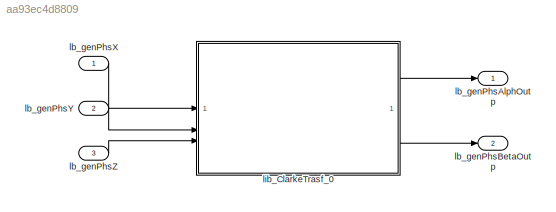
MODEL slx_aa93ec4d8809
KIND library
CONFIG AbsTol = auto
CONFIG EnableMultiTasking = off
CONFIG FixedStep = auto
CONFIG MaxStep = auto
CONFIG MinStep = auto
CONFIG RelTol = 1e-3
CONFIG SampleTimeConstraint = Unconstrained
CONFIG SolverName = VariableStepAuto
CONFIG StartTime = 0.0
CONFIG StopTime = 10.0
BLOCK [Outport] lb_genPhsAlphOutp
BLOCK [Outport] lb_genPhsBetaOutp
  Port = 2
BLOCK [Inport] lb_genPhsX
BLOCK [Inport] lb_genPhsY
  Port = 2
BLOCK [Inport] lb_genPhsZ
  Port = 3
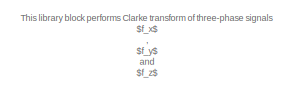
[diagram: lib_ClarkeTrasf_0 - part 1/4, top center region]
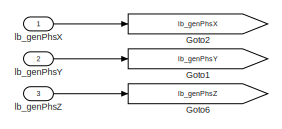
[diagram: lib_ClarkeTrasf_0 - part 2/4, middle left region]
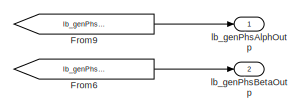
[diagram: lib_ClarkeTrasf_0 - part 3/4, middle right region]
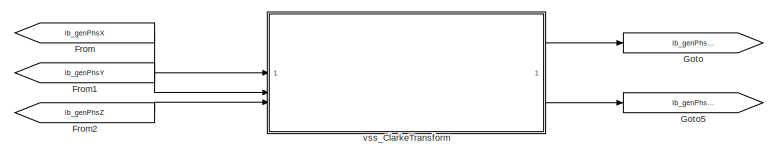
[diagram: lib_ClarkeTrasf_0 - part 4/4, bottom center region]
BLOCK [SubSystem] lib_ClarkeTrasf_0
  VariantControl = ClarkTransf_MIL_flo
BLOCK [From] lib_ClarkeTrasf_0/From
  GotoTag = lb_genPhsX
BLOCK [From] lib_ClarkeTrasf_0/From1
  GotoTag = lb_genPhsY
BLOCK [From] lib_ClarkeTrasf_0/From2
  GotoTag = lb_genPhsZ
BLOCK [From] lib_ClarkeTrasf_0/From6
  GotoTag = lb_genPhsBetaOutp
BLOCK [From] lib_ClarkeTrasf_0/From9
  GotoTag = lb_genPhsAlphOutp
BLOCK [Goto] lib_ClarkeTrasf_0/Goto
  GotoTag = lb_genPhsAlphOutp
BLOCK [Goto] lib_ClarkeTrasf_0/Goto1
  GotoTag = lb_genPhsY
BLOCK [Goto] lib_ClarkeTrasf_0/Goto2
  GotoTag = lb_genPhsX
BLOCK [Goto] lib_ClarkeTrasf_0/Goto5
  GotoTag = lb_genPhsBetaOutp
BLOCK [Goto] lib_ClarkeTrasf_0/Goto6
  GotoTag = lb_genPhsZ
BLOCK [Outport] lib_ClarkeTrasf_0/lb_genPhsAlphOutp
  VectorParamsAs1DForOutWhenUnconnected = off
BLOCK [Outport] lib_ClarkeTrasf_0/lb_genPhsBetaOutp
  Port = 2
  VectorParamsAs1DForOutWhenUnconnected = off
BLOCK [Inport] lib_ClarkeTrasf_0/lb_genPhsX
BLOCK [Inport] lib_ClarkeTrasf_0/lb_genPhsY
  Port = 2
BLOCK [Inport] lib_ClarkeTrasf_0/lb_genPhsZ
  Port = 3
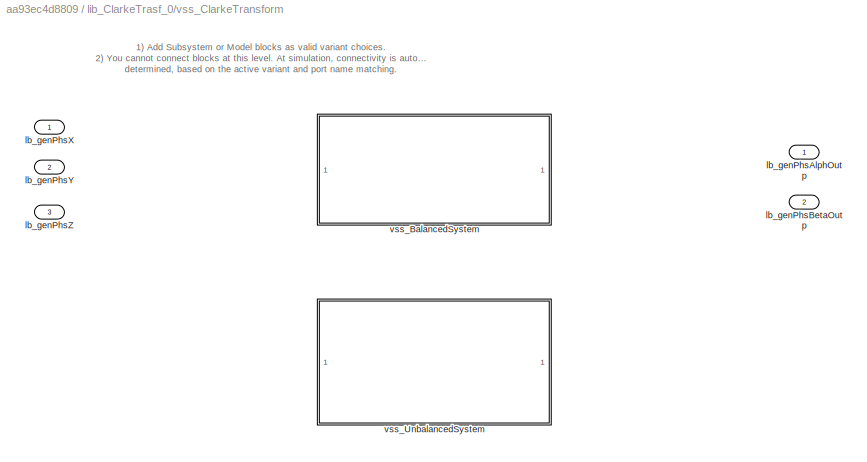
BLOCK [SubSystem] lib_ClarkeTrasf_0/vss_ClarkeTransform
  LabelModeActiveChoice = lb_parBalcSysModeLbl
  Variant = on
  VariantControlMode = label
BLOCK [Outport] lib_ClarkeTrasf_0/vss_ClarkeTransform/lb_genPhsAlphOutp
BLOCK [Outport] lib_ClarkeTrasf_0/vss_ClarkeTransform/lb_genPhsBetaOutp
  Port = 2
BLOCK [Inport] lib_ClarkeTrasf_0/vss_ClarkeTransform/lb_genPhsX
BLOCK [Inport] lib_ClarkeTrasf_0/vss_ClarkeTransform/lb_genPhsY
  Port = 2
BLOCK [Inport] lib_ClarkeTrasf_0/vss_ClarkeTransform/lb_genPhsZ
  Port = 3
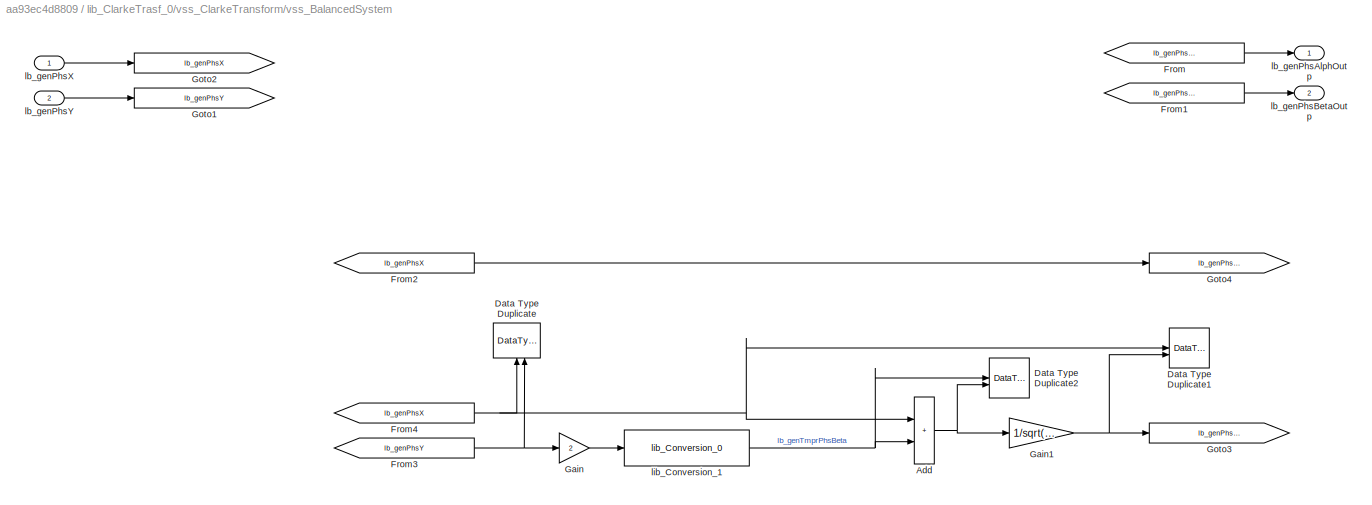
BLOCK [SubSystem] lib_ClarkeTrasf_0/vss_ClarkeTransform/vss_BalancedSystem
  VariantControl = lb_parBalcSysModeLbl
BLOCK [Sum] lib_ClarkeTrasf_0/vss_ClarkeTransform/vss_BalancedSystem/Add
  IconShape = rectangular
  OutDataTypeStr = Inherit: Inherit via back propagation
  RndMeth = Simplest
BLOCK [DataTypeDuplicate] lib_ClarkeTrasf_0/vss_ClarkeTransform/vss_BalancedSystem/Data Type Duplicate
  NameLocation = right
BLOCK [DataTypeDuplicate] lib_ClarkeTrasf_0/vss_ClarkeTransform/vss_BalancedSystem/Data Type Duplicate1
BLOCK [DataTypeDuplicate] lib_ClarkeTrasf_0/vss_ClarkeTransform/vss_BalancedSystem/Data Type Duplicate2
BLOCK [From] lib_ClarkeTrasf_0/vss_ClarkeTransform/vss_BalancedSystem/From
  GotoTag = lb_genPhsAlphOutp
BLOCK [From] lib_ClarkeTrasf_0/vss_ClarkeTransform/vss_BalancedSystem/From1
  GotoTag = lb_genPhsBetaOutp
BLOCK [From] lib_ClarkeTrasf_0/vss_ClarkeTransform/vss_BalancedSystem/From2
  GotoTag = lb_genPhsX
BLOCK [From] lib_ClarkeTrasf_0/vss_ClarkeTransform/vss_BalancedSystem/From3
  GotoTag = lb_genPhsY
BLOCK [From] lib_ClarkeTrasf_0/vss_ClarkeTransform/vss_BalancedSystem/From4
  GotoTag = lb_genPhsX
BLOCK [Gain] lib_ClarkeTrasf_0/vss_ClarkeTransform/vss_BalancedSystem/Gain
  Gain = 2
  OutDataTypeStr = Inherit: Inherit via back propagation
  RndMeth = Simplest
BLOCK [Gain] lib_ClarkeTrasf_0/vss_ClarkeTransform/vss_BalancedSystem/Gain1
  Gain = 1/sqrt(3)
  OutDataTypeStr = Inherit: Inherit via back propagation
  RndMeth = Simplest
BLOCK [Goto] lib_ClarkeTrasf_0/vss_ClarkeTransform/vss_BalancedSystem/Goto1
  GotoTag = lb_genPhsY
BLOCK [Goto] lib_ClarkeTrasf_0/vss_ClarkeTransform/vss_BalancedSystem/Goto2
  GotoTag = lb_genPhsX
BLOCK [Goto] lib_ClarkeTrasf_0/vss_ClarkeTransform/vss_BalancedSystem/Goto3
  GotoTag = lb_genPhsBetaOutp
BLOCK [Goto] lib_ClarkeTrasf_0/vss_ClarkeTransform/vss_BalancedSystem/Goto4
  GotoTag = lb_genPhsAlphOutp
BLOCK [Outport] lib_ClarkeTrasf_0/vss_ClarkeTransform/vss_BalancedSystem/lb_genPhsAlphOutp
  VectorParamsAs1DForOutWhenUnconnected = off
BLOCK [Outport] lib_ClarkeTrasf_0/vss_ClarkeTransform/vss_BalancedSystem/lb_genPhsBetaOutp
  Port = 2
  VectorParamsAs1DForOutWhenUnconnected = off
BLOCK [Inport] lib_ClarkeTrasf_0/vss_ClarkeTransform/vss_BalancedSystem/lb_genPhsX
BLOCK [Inport] lib_ClarkeTrasf_0/vss_ClarkeTransform/vss_BalancedSystem/lb_genPhsY
  Port = 2
BLOCK [Reference] lib_ClarkeTrasf_0/vss_ClarkeTransform/vss_BalancedSystem/lib_Conversion_1  REF=lib_conversion/lib_Conversion_0  (lib defined in slx_7f5c0202220d)
  SourceBlock = lib_conversion/lib_Conversion_0
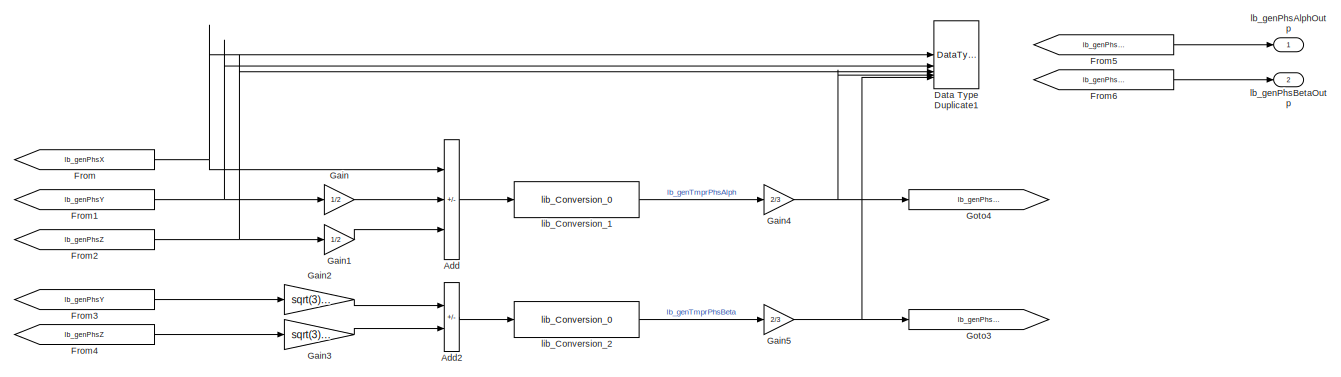
[diagram: lib_ClarkeTrasf_0/vss_ClarkeTransform/vss_UnbalancedSystem - part 1/2, most of the canvas]
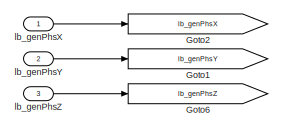
[diagram: lib_ClarkeTrasf_0/vss_ClarkeTransform/vss_UnbalancedSystem - part 2/2, top left region]
BLOCK [SubSystem] lib_ClarkeTrasf_0/vss_ClarkeTransform/vss_UnbalancedSystem
  VariantControl = lb_parUnBalcSysModeLbl
BLOCK [Sum] lib_ClarkeTrasf_0/vss_ClarkeTransform/vss_UnbalancedSystem/Add
  IconShape = rectangular
  InputSameDT = on
  Inputs = +--
  OutDataTypeStr = Inherit: Inherit via back propagation
  RndMeth = Simplest
  SaturateOnIntegerOverflow = on
BLOCK [Sum] lib_ClarkeTrasf_0/vss_ClarkeTransform/vss_UnbalancedSystem/Add2
  IconShape = rectangular
  InputSameDT = on
  Inputs = +-
  OutDataTypeStr = Inherit: Inherit via back propagation
  RndMeth = Simplest
  SaturateOnIntegerOverflow = on
BLOCK [DataTypeDuplicate] lib_ClarkeTrasf_0/vss_ClarkeTransform/vss_UnbalancedSystem/Data Type Duplicate1
  NumInputPorts = 5
BLOCK [From] lib_ClarkeTrasf_0/vss_ClarkeTransform/vss_UnbalancedSystem/From
  GotoTag = lb_genPhsX
BLOCK [From] lib_ClarkeTrasf_0/vss_ClarkeTransform/vss_UnbalancedSystem/From1
  GotoTag = lb_genPhsY
BLOCK [From] lib_ClarkeTrasf_0/vss_ClarkeTransform/vss_UnbalancedSystem/From2
  GotoTag = lb_genPhsZ
BLOCK [From] lib_ClarkeTrasf_0/vss_ClarkeTransform/vss_UnbalancedSystem/From3
  GotoTag = lb_genPhsY
BLOCK [From] lib_ClarkeTrasf_0/vss_ClarkeTransform/vss_UnbalancedSystem/From4
  GotoTag = lb_genPhsZ
BLOCK [From] lib_ClarkeTrasf_0/vss_ClarkeTransform/vss_UnbalancedSystem/From5
  GotoTag = lb_genPhsAlphOutp
BLOCK [From] lib_ClarkeTrasf_0/vss_ClarkeTransform/vss_UnbalancedSystem/From6
  GotoTag = lb_genPhsBetaOutp
BLOCK [Gain] lib_ClarkeTrasf_0/vss_ClarkeTransform/vss_UnbalancedSystem/Gain
  Gain = 1/2
  OutDataTypeStr = Inherit: Same as input
  RndMeth = Simplest
BLOCK [Gain] lib_ClarkeTrasf_0/vss_ClarkeTransform/vss_UnbalancedSystem/Gain1
  Gain = 1/2
  OutDataTypeStr = Inherit: Same as input
  RndMeth = Simplest
BLOCK [Gain] lib_ClarkeTrasf_0/vss_ClarkeTransform/vss_UnbalancedSystem/Gain2
  Gain = sqrt(3)/2
  OutDataTypeStr = Inherit: Same as input
  RndMeth = Simplest
BLOCK [Gain] lib_ClarkeTrasf_0/vss_ClarkeTransform/vss_UnbalancedSystem/Gain3
  Gain = sqrt(3)/2
  OutDataTypeStr = Inherit: Same as input
  RndMeth = Simplest
BLOCK [Gain] lib_ClarkeTrasf_0/vss_ClarkeTransform/vss_UnbalancedSystem/Gain4
  Gain = 2/3
  OutDataTypeStr = Inherit: Inherit via back propagation
  RndMeth = Simplest
BLOCK [Gain] lib_ClarkeTrasf_0/vss_ClarkeTransform/vss_UnbalancedSystem/Gain5
  Gain = 2/3
  OutDataTypeStr = Inherit: Inherit via back propagation
  RndMeth = Simplest
BLOCK [Goto] lib_ClarkeTrasf_0/vss_ClarkeTransform/vss_UnbalancedSystem/Goto1
  GotoTag = lb_genPhsY
BLOCK [Goto] lib_ClarkeTrasf_0/vss_ClarkeTransform/vss_UnbalancedSystem/Goto2
  GotoTag = lb_genPhsX
BLOCK [Goto] lib_ClarkeTrasf_0/vss_ClarkeTransform/vss_UnbalancedSystem/Goto3
  GotoTag = lb_genPhsBetaOutp
BLOCK [Goto] lib_ClarkeTrasf_0/vss_ClarkeTransform/vss_UnbalancedSystem/Goto4
  GotoTag = lb_genPhsAlphOutp
BLOCK [Goto] lib_ClarkeTrasf_0/vss_ClarkeTransform/vss_UnbalancedSystem/Goto6
  GotoTag = lb_genPhsZ
BLOCK [Outport] lib_ClarkeTrasf_0/vss_ClarkeTransform/vss_UnbalancedSystem/lb_genPhsAlphOutp
  VectorParamsAs1DForOutWhenUnconnected = off
BLOCK [Outport] lib_ClarkeTrasf_0/vss_ClarkeTransform/vss_UnbalancedSystem/lb_genPhsBetaOutp
  Port = 2
  VectorParamsAs1DForOutWhenUnconnected = off
BLOCK [Inport] lib_ClarkeTrasf_0/vss_ClarkeTransform/vss_UnbalancedSystem/lb_genPhsX
BLOCK [Inport] lib_ClarkeTrasf_0/vss_ClarkeTransform/vss_UnbalancedSystem/lb_genPhsY
  Port = 2
BLOCK [Inport] lib_ClarkeTrasf_0/vss_ClarkeTransform/vss_UnbalancedSystem/lb_genPhsZ
  Port = 3
BLOCK [Reference] lib_ClarkeTrasf_0/vss_ClarkeTransform/vss_UnbalancedSystem/lib_Conversion_1  REF=lib_conversion/lib_Conversion_0  (lib defined in slx_7f5c0202220d)
  SourceBlock = lib_conversion/lib_Conversion_0
BLOCK [Reference] lib_ClarkeTrasf_0/vss_ClarkeTransform/vss_UnbalancedSystem/lib_Conversion_2  REF=lib_conversion/lib_Conversion_0  (lib defined in slx_7f5c0202220d)
  SourceBlock = lib_conversion/lib_Conversion_0
ANNOTATION lib_ClarkeTrasf_0: This library block performs Clarke transform of three-phase signals $f_x$ , $f_y$ and $f_z$ in stationary frame X-Y-X into two-phase signals $f_\alpha$ and $f_\beta$ in stationary frame alpha-beta, according to the type of the system the signals belong to. In case of balanced system: $f_x + f_y + f_z = 0$ then $f_\alpha$ and $f_\beta$ are computed as: $f_\alpha = f_x$ $f_\beta = (f_x + 2f_y)/\sqrt...<+173ch>
ANNOTATION lib_ClarkeTrasf_0/vss_ClarkeTransform: 1) Add Subsystem or Model blocks as valid variant choices. 2) You cannot connect blocks at this level. At simulation, connectivity is automatically determined, based on the active variant and port name matching.
LINE lb_genPhsX:1 -> lib_ClarkeTrasf_0:1
LINE lb_genPhsY:1 -> lib_ClarkeTrasf_0:2
LINE lb_genPhsZ:1 -> lib_ClarkeTrasf_0:3
LINE lib_ClarkeTrasf_0/From1:1 -> lib_ClarkeTrasf_0/vss_ClarkeTransform:2
LINE lib_ClarkeTrasf_0/From2:1 -> lib_ClarkeTrasf_0/vss_ClarkeTransform:3
LINE lib_ClarkeTrasf_0/From6:1 -> lib_ClarkeTrasf_0/lb_genPhsBetaOutp:1
LINE lib_ClarkeTrasf_0/From9:1 -> lib_ClarkeTrasf_0/lb_genPhsAlphOutp:1
LINE lib_ClarkeTrasf_0/From:1 -> lib_ClarkeTrasf_0/vss_ClarkeTransform:1
LINE lib_ClarkeTrasf_0/lb_genPhsX:1 -> lib_ClarkeTrasf_0/Goto2:1
LINE lib_ClarkeTrasf_0/lb_genPhsY:1 -> lib_ClarkeTrasf_0/Goto1:1
LINE lib_ClarkeTrasf_0/lb_genPhsZ:1 -> lib_ClarkeTrasf_0/Goto6:1
NET lib_ClarkeTrasf_0/vss_ClarkeTransform/vss_BalancedSystem/Add:1 -> lib_ClarkeTrasf_0/vss_ClarkeTransform/vss_BalancedSystem/Data Type Duplicate2:2, lib_ClarkeTrasf_0/vss_ClarkeTransform/vss_BalancedSystem/Gain1:1
LINE lib_ClarkeTrasf_0/vss_ClarkeTransform/vss_BalancedSystem/From1:1 -> lib_ClarkeTrasf_0/vss_ClarkeTransform/vss_BalancedSystem/lb_genPhsBetaOutp:1
LINE lib_ClarkeTrasf_0/vss_ClarkeTransform/vss_BalancedSystem/From2:1 -> lib_ClarkeTrasf_0/vss_ClarkeTransform/vss_BalancedSystem/Goto4:1
NET lib_ClarkeTrasf_0/vss_ClarkeTransform/vss_BalancedSystem/From3:1 -> lib_ClarkeTrasf_0/vss_ClarkeTransform/vss_BalancedSystem/Data Type Duplicate:2, lib_ClarkeTrasf_0/vss_ClarkeTransform/vss_BalancedSystem/Gain:1
NET lib_ClarkeTrasf_0/vss_ClarkeTransform/vss_BalancedSystem/From4:1 -> lib_ClarkeTrasf_0/vss_ClarkeTransform/vss_BalancedSystem/Add:1, lib_ClarkeTrasf_0/vss_ClarkeTransform/vss_BalancedSystem/Data Type Duplicate1:1, lib_ClarkeTrasf_0/vss_ClarkeTransform/vss_BalancedSystem/Data Type Duplicate:1
LINE lib_ClarkeTrasf_0/vss_ClarkeTransform/vss_BalancedSystem/From:1 -> lib_ClarkeTrasf_0/vss_ClarkeTransform/vss_BalancedSystem/lb_genPhsAlphOutp:1
NET lib_ClarkeTrasf_0/vss_ClarkeTransform/vss_BalancedSystem/Gain1:1 -> lib_ClarkeTrasf_0/vss_ClarkeTransform/vss_BalancedSystem/Data Type Duplicate1:2, lib_ClarkeTrasf_0/vss_ClarkeTransform/vss_BalancedSystem/Goto3:1
LINE lib_ClarkeTrasf_0/vss_ClarkeTransform/vss_BalancedSystem/Gain:1 -> lib_ClarkeTrasf_0/vss_ClarkeTransform/vss_BalancedSystem/lib_Conversion_1:1
LINE lib_ClarkeTrasf_0/vss_ClarkeTransform/vss_BalancedSystem/lb_genPhsX:1 -> lib_ClarkeTrasf_0/vss_ClarkeTransform/vss_BalancedSystem/Goto2:1
LINE lib_ClarkeTrasf_0/vss_ClarkeTransform/vss_BalancedSystem/lb_genPhsY:1 -> lib_ClarkeTrasf_0/vss_ClarkeTransform/vss_BalancedSystem/Goto1:1
NET lib_ClarkeTrasf_0/vss_ClarkeTransform/vss_BalancedSystem/lib_Conversion_1:1 -> lib_ClarkeTrasf_0/vss_ClarkeTransform/vss_BalancedSystem/Add:2, lib_ClarkeTrasf_0/vss_ClarkeTransform/vss_BalancedSystem/Data Type Duplicate2:1
LINE lib_ClarkeTrasf_0/vss_ClarkeTransform/vss_UnbalancedSystem/Add2:1 -> lib_ClarkeTrasf_0/vss_ClarkeTransform/vss_UnbalancedSystem/lib_Conversion_2:1
LINE lib_ClarkeTrasf_0/vss_ClarkeTransform/vss_UnbalancedSystem/Add:1 -> lib_ClarkeTrasf_0/vss_ClarkeTransform/vss_UnbalancedSystem/lib_Conversion_1:1
NET lib_ClarkeTrasf_0/vss_ClarkeTransform/vss_UnbalancedSystem/From1:1 -> lib_ClarkeTrasf_0/vss_ClarkeTransform/vss_UnbalancedSystem/Data Type Duplicate1:2, lib_ClarkeTrasf_0/vss_ClarkeTransform/vss_UnbalancedSystem/Gain:1
NET lib_ClarkeTrasf_0/vss_ClarkeTransform/vss_UnbalancedSystem/From2:1 -> lib_ClarkeTrasf_0/vss_ClarkeTransform/vss_UnbalancedSystem/Data Type Duplicate1:3, lib_ClarkeTrasf_0/vss_ClarkeTransform/vss_UnbalancedSystem/Gain1:1
LINE lib_ClarkeTrasf_0/vss_ClarkeTransform/vss_UnbalancedSystem/From3:1 -> lib_ClarkeTrasf_0/vss_ClarkeTransform/vss_UnbalancedSystem/Gain2:1
LINE lib_ClarkeTrasf_0/vss_ClarkeTransform/vss_UnbalancedSystem/From4:1 -> lib_ClarkeTrasf_0/vss_ClarkeTransform/vss_UnbalancedSystem/Gain3:1
LINE lib_ClarkeTrasf_0/vss_ClarkeTransform/vss_UnbalancedSystem/From5:1 -> lib_ClarkeTrasf_0/vss_ClarkeTransform/vss_UnbalancedSystem/lb_genPhsAlphOutp:1
LINE lib_ClarkeTrasf_0/vss_ClarkeTransform/vss_UnbalancedSystem/From6:1 -> lib_ClarkeTrasf_0/vss_ClarkeTransform/vss_UnbalancedSystem/lb_genPhsBetaOutp:1
NET lib_ClarkeTrasf_0/vss_ClarkeTransform/vss_UnbalancedSystem/From:1 -> lib_ClarkeTrasf_0/vss_ClarkeTransform/vss_UnbalancedSystem/Add:1, lib_ClarkeTrasf_0/vss_ClarkeTransform/vss_UnbalancedSystem/Data Type Duplicate1:1
LINE lib_ClarkeTrasf_0/vss_ClarkeTransform/vss_UnbalancedSystem/Gain1:1 -> lib_ClarkeTrasf_0/vss_ClarkeTransform/vss_UnbalancedSystem/Add:3
LINE lib_ClarkeTrasf_0/vss_ClarkeTransform/vss_UnbalancedSystem/Gain2:1 -> lib_ClarkeTrasf_0/vss_ClarkeTransform/vss_UnbalancedSystem/Add2:1
LINE lib_ClarkeTrasf_0/vss_ClarkeTransform/vss_UnbalancedSystem/Gain3:1 -> lib_ClarkeTrasf_0/vss_ClarkeTransform/vss_UnbalancedSystem/Add2:2
NET lib_ClarkeTrasf_0/vss_ClarkeTransform/vss_UnbalancedSystem/Gain4:1 -> lib_ClarkeTrasf_0/vss_ClarkeTransform/vss_UnbalancedSystem/Data Type Duplicate1:4, lib_ClarkeTrasf_0/vss_ClarkeTransform/vss_UnbalancedSystem/Goto4:1
NET lib_ClarkeTrasf_0/vss_ClarkeTransform/vss_UnbalancedSystem/Gain5:1 -> lib_ClarkeTrasf_0/vss_ClarkeTransform/vss_UnbalancedSystem/Data Type Duplicate1:5, lib_ClarkeTrasf_0/vss_ClarkeTransform/vss_UnbalancedSystem/Goto3:1
LINE lib_ClarkeTrasf_0/vss_ClarkeTransform/vss_UnbalancedSystem/Gain:1 -> lib_ClarkeTrasf_0/vss_ClarkeTransform/vss_UnbalancedSystem/Add:2
LINE lib_ClarkeTrasf_0/vss_ClarkeTransform/vss_UnbalancedSystem/lb_genPhsX:1 -> lib_ClarkeTrasf_0/vss_ClarkeTransform/vss_UnbalancedSystem/Goto2:1
LINE lib_ClarkeTrasf_0/vss_ClarkeTransform/vss_UnbalancedSystem/lb_genPhsY:1 -> lib_ClarkeTrasf_0/vss_ClarkeTransform/vss_UnbalancedSystem/Goto1:1
LINE lib_ClarkeTrasf_0/vss_ClarkeTransform/vss_UnbalancedSystem/lb_genPhsZ:1 -> lib_ClarkeTrasf_0/vss_ClarkeTransform/vss_UnbalancedSystem/Goto6:1
LINE lib_ClarkeTrasf_0/vss_ClarkeTransform/vss_UnbalancedSystem/lib_Conversion_1:1 -> lib_ClarkeTrasf_0/vss_ClarkeTransform/vss_UnbalancedSystem/Gain4:1
LINE lib_ClarkeTrasf_0/vss_ClarkeTransform/vss_UnbalancedSystem/lib_Conversion_2:1 -> lib_ClarkeTrasf_0/vss_ClarkeTransform/vss_UnbalancedSystem/Gain5:1
LINE lib_ClarkeTrasf_0/vss_ClarkeTransform:1 -> lib_ClarkeTrasf_0/Goto:1
LINE lib_ClarkeTrasf_0/vss_ClarkeTransform:2 -> lib_ClarkeTrasf_0/Goto5:1
LINE lib_ClarkeTrasf_0:1 -> lb_genPhsAlphOutp:1
LINE lib_ClarkeTrasf_0:2 -> lb_genPhsBetaOutp:1
note: NET lines group one-source signal fan-out (src -> all destinations, sorted); 1:1 wires keep LINE
